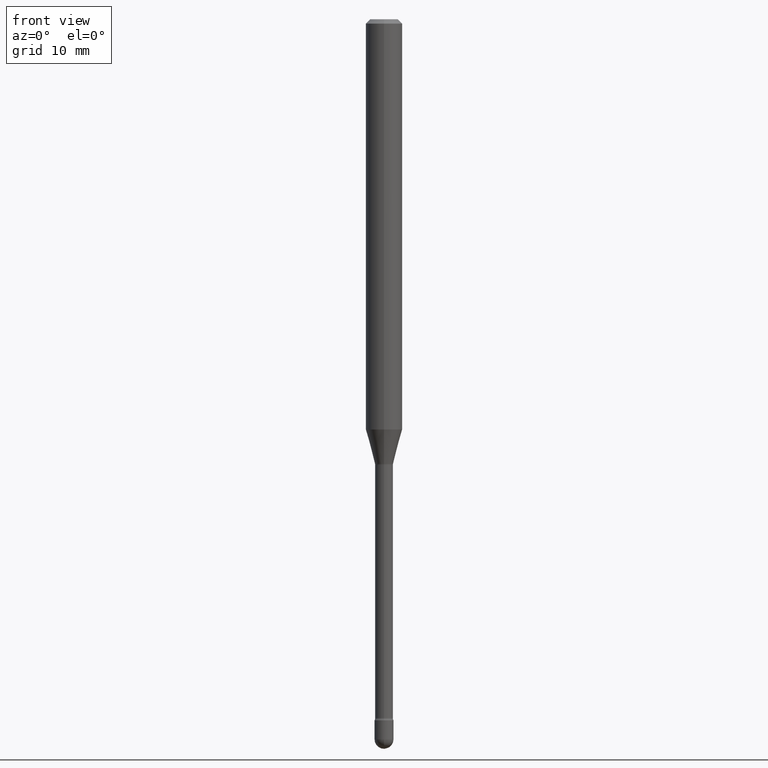
[diagram: clean part render]
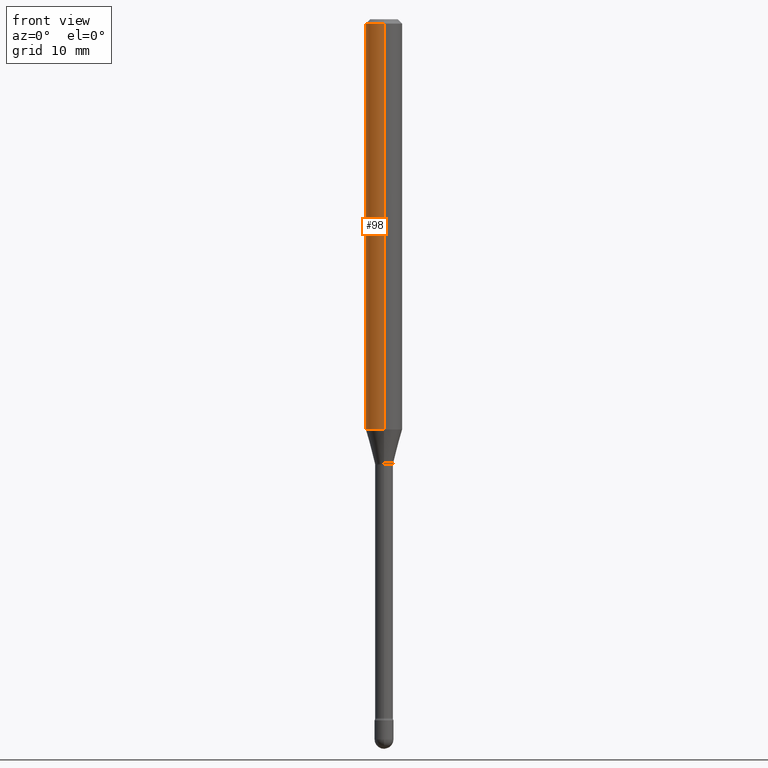
[diagram: same view with one face highlighted and labeled with its STEP entity id]
A machine part, front view. The second image highlights one B-rep face of the part: STEP entity #98.
In plain terms, the highlighted cylindrical surface (edge-blend (fillet) strip) has radius 1.5875 mm, axis along (-0, 0, 1).
Its self-contained STEP definition (entity closure, byte-faithful):
#5 = DIRECTION ( 'NONE',  ( -2.445462509514312655E-29, 3.491490356034149509E-15, 1.000000000000000000 ) ) ;
#19 = EDGE_LOOP ( 'NONE', ( #469, #500, #340, #76 ) ) ;
#30 = DIRECTION ( 'NONE',  ( -2.445462509514312655E-29, 3.491490356034149509E-15, 1.000000000000000000 ) ) ;
#34 = AXIS2_PLACEMENT_3D ( 'NONE', #499, #104, #53 ) ;
#36 = DIRECTION ( 'NONE',  ( -2.445462509514312655E-29, 3.491490356034149509E-15, 1.000000000000000000 ) ) ;
#43 = AXIS2_PLACEMENT_3D ( 'NONE', #222, #36, #64 ) ;
#44 = AXIS2_PLACEMENT_3D ( 'NONE', #264, #560, #393 ) ;
#53 = DIRECTION ( 'NONE',  ( -6.982962677686265922E-15, -1.000000000000000000, 4.370956789862821150E-15 ) ) ;
#59 = VERTEX_POINT ( 'NONE', #123 ) ;
#64 = DIRECTION ( 'NONE',  ( -6.982962677686265922E-15, -1.000000000000000000, 3.491490356034149115E-15 ) ) ;
#68 = CIRCLE ( 'NONE', #34, 0.06250000000000000000 ) ;
#75 = LINE ( 'NONE', #180, #326 ) ;
#76 = ORIENTED_EDGE ( 'NONE', *, *, #405, .F. ) ;
#98 = ADVANCED_FACE ( 'NONE', ( #517 ), #341, .T. ) ;
#104 = DIRECTION ( 'NONE',  ( -2.445462509514312655E-29, 3.491490356034149509E-15, 1.000000000000000000 ) ) ;
#105 = CARTESIAN_POINT ( 'NONE',  ( 4.440892098500967344E-16, 0.06249999999999506645, -1.405760976698175124 ) ) ;
#123 = CARTESIAN_POINT ( 'NONE',  ( -4.364351673553574033E-16, -0.06250000000000494049, -1.405760976698174458 ) ) ;
#124 = EDGE_CURVE ( 'NONE', #59, #467, #172, .T. ) ;
#157 = CARTESIAN_POINT ( 'NONE',  ( -4.364351673553912750E-16, -0.06250000000000005551, -0.01499999999999986587 ) ) ;
#170 = VERTEX_POINT ( 'NONE', #343 ) ;
#172 = LINE ( 'NONE', #386, #428 ) ;
#180 = CARTESIAN_POINT ( 'NONE',  ( 4.440892098500625669E-16, 0.06250000000000000000, 2.598552516391117189E-16 ) ) ;
#215 = VERTEX_POINT ( 'NONE', #105 ) ;
#222 = CARTESIAN_POINT ( 'NONE',  ( -1.169113584055446105E-44, 1.669184350826100908E-30, 4.780733988912460139E-16 ) ) ;
#264 = CARTESIAN_POINT ( 'NONE',  ( 3.668193764271489529E-31, -5.237235534051253304E-17, -0.01500000000000008271 ) ) ;
#326 = VECTOR ( 'NONE', #5, 39.37007874015748143 ) ;
#340 = ORIENTED_EDGE ( 'NONE', *, *, #124, .T. ) ;
#341 = CYLINDRICAL_SURFACE ( 'NONE', #43, 0.06250000000000000000 ) ;
#343 = CARTESIAN_POINT ( 'NONE',  ( 4.440892098500972274E-16, 0.06249999999999995143, -0.01500000000000030129 ) ) ;
#386 = CARTESIAN_POINT ( 'NONE',  ( -4.364351673553916201E-16, -0.06250000000000000000, 6.962915461433803582E-16 ) ) ;
#393 = DIRECTION ( 'NONE',  ( -6.982962677686265922E-15, -1.000000000000000000, 3.483106191921935554E-15 ) ) ;
#405 = EDGE_CURVE ( 'NONE', #170, #467, #514, .T. ) ;
#428 = VECTOR ( 'NONE', #30, 39.37007874015748143 ) ;
#461 = EDGE_CURVE ( 'NONE', #215, #59, #68, .T. ) ;
#467 = VERTEX_POINT ( 'NONE', #157 ) ;
#469 = ORIENTED_EDGE ( 'NONE', *, *, #488, .F. ) ;
#488 = EDGE_CURVE ( 'NONE', #215, #170, #75, .T. ) ;
#499 = CARTESIAN_POINT ( 'NONE',  ( 3.437735765853609990E-29, -4.908200893030823515E-15, -1.405760976698174902 ) ) ;
#500 = ORIENTED_EDGE ( 'NONE', *, *, #461, .T. ) ;
#514 = CIRCLE ( 'NONE', #44, 0.06250000000000000000 ) ;
#517 = FACE_OUTER_BOUND ( 'NONE', #19, .T. ) ;
#560 = DIRECTION ( 'NONE',  ( -2.445462509514312655E-29, 3.491490356034149509E-15, 1.000000000000000000 ) ) ;